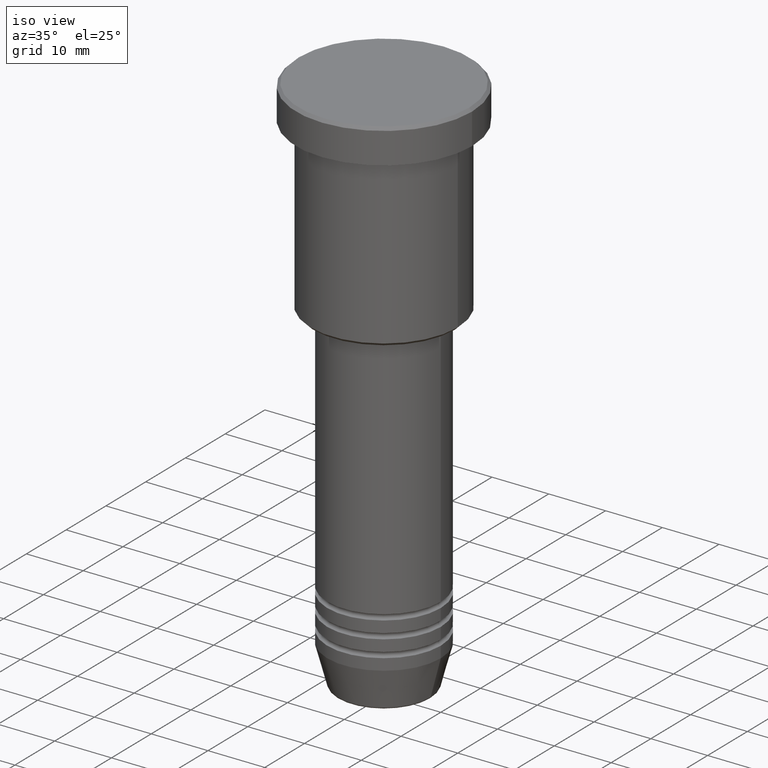
[diagram: clean part render]
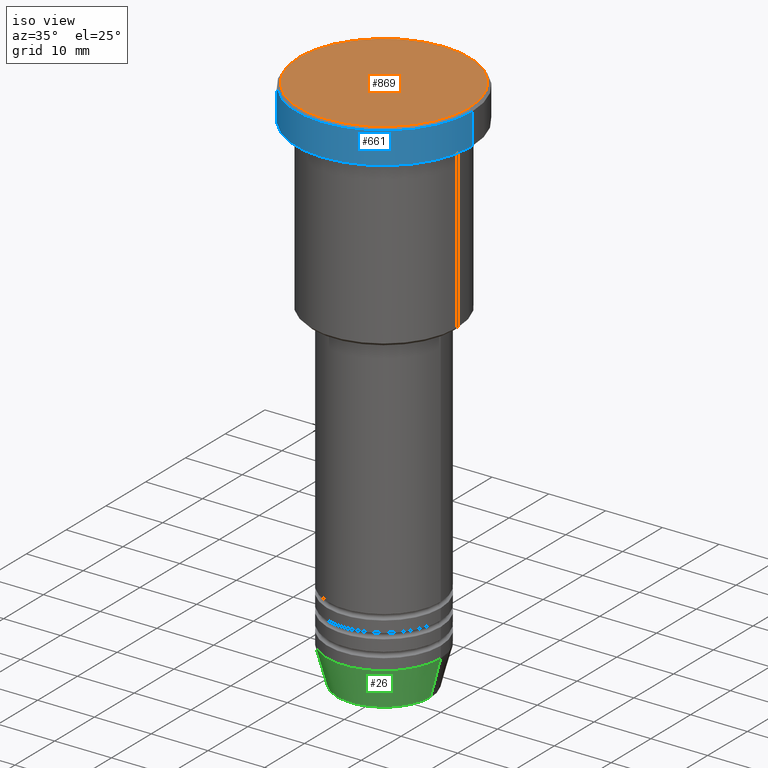
[diagram: same view with three faces highlighted in distinct colors, each labeled with its STEP entity id]
A machine part, iso view with three faces highlighted in distinct colors.
Their STEP definitions:

[orange] entity #869 — the highlighted planar face has unit normal (0, -0, 1).
#3 = DIRECTION ( 'NONE',  ( -0.000000000000000000, -0.000000000000000000, 1.000000000000000000 ) ) ;
#74 = CIRCLE ( 'NONE', #745, 15.00000000000001421 ) ;
#101 = CARTESIAN_POINT ( 'NONE',  ( 0.000000000000000000, 0.000000000000000000, 0.000000000000000000 ) ) ;
#191 = CARTESIAN_POINT ( 'NONE',  ( 15.00000000000001421, 1.867586368699714559E-15, 0.000000000000000000 ) ) ;
#236 = FACE_OUTER_BOUND ( 'NONE', #515, .T. ) ;
#238 = CARTESIAN_POINT ( 'NONE',  ( -15.00000000000001421, 0.000000000000000000, 0.000000000000000000 ) ) ;
#279 = CARTESIAN_POINT ( 'NONE',  ( 0.000000000000000000, 0.000000000000000000, 0.000000000000000000 ) ) ;
#308 = ORIENTED_EDGE ( 'NONE', *, *, #926, .T. ) ;
#410 = AXIS2_PLACEMENT_3D ( 'NONE', #965, #628, #514 ) ;
#514 = DIRECTION ( 'NONE',  ( 1.000000000000000000, 0.000000000000000000, 0.000000000000000000 ) ) ;
#515 = EDGE_LOOP ( 'NONE', ( #725, #308 ) ) ;
#529 = VERTEX_POINT ( 'NONE', #238 ) ;
#589 = AXIS2_PLACEMENT_3D ( 'NONE', #101, #3, #920 ) ;
#628 = DIRECTION ( 'NONE',  ( 0.000000000000000000, -0.000000000000000000, 1.000000000000000000 ) ) ;
#725 = ORIENTED_EDGE ( 'NONE', *, *, #913, .T. ) ;
#745 = AXIS2_PLACEMENT_3D ( 'NONE', #279, #811, #1177 ) ;
#811 = DIRECTION ( 'NONE',  ( -0.000000000000000000, -0.000000000000000000, 1.000000000000000000 ) ) ;
#869 = ADVANCED_FACE ( 'NONE', ( #236 ), #1056, .T. ) ;
#913 = EDGE_CURVE ( 'NONE', #529, #996, #946, .T. ) ;
#920 = DIRECTION ( 'NONE',  ( 1.000000000000000000, 0.000000000000000000, 0.000000000000000000 ) ) ;
#926 = EDGE_CURVE ( 'NONE', #996, #529, #74, .T. ) ;
#946 = CIRCLE ( 'NONE', #589, 15.00000000000001421 ) ;
#965 = CARTESIAN_POINT ( 'NONE',  ( 0.000000000000000000, 0.000000000000000000, 0.000000000000000000 ) ) ;
#996 = VERTEX_POINT ( 'NONE', #191 ) ;
#1056 = PLANE ( 'NONE',  #410 ) ;
#1177 = DIRECTION ( 'NONE',  ( 1.000000000000000000, 0.000000000000000000, 0.000000000000000000 ) ) ;

[blue] entity #661 — the highlighted cylindrical surface (partial cylindrical patch) has radius 15.5 mm, axis along (-0, -0, 1).
#31 = VERTEX_POINT ( 'NONE', #999 ) ;
#93 = AXIS2_PLACEMENT_3D ( 'NONE', #148, #165, #520 ) ;
#118 = DIRECTION ( 'NONE',  ( -0.000000000000000000, -0.000000000000000000, 1.000000000000000000 ) ) ;
#148 = CARTESIAN_POINT ( 'NONE',  ( 0.000000000000000000, 0.000000000000000000, -0.4999999999999987232 ) ) ;
#160 = CARTESIAN_POINT ( 'NONE',  ( -15.50000000000000000, 1.898202538678397557E-15, -0.4999999999999987232 ) ) ;
#165 = DIRECTION ( 'NONE',  ( 0.000000000000000000, 0.000000000000000000, -1.000000000000000000 ) ) ;
#245 = VECTOR ( 'NONE', #730, 1000.000000000000000 ) ;
#257 = VERTEX_POINT ( 'NONE', #874 ) ;
#258 = ORIENTED_EDGE ( 'NONE', *, *, #1034, .T. ) ;
#273 = CARTESIAN_POINT ( 'NONE',  ( -15.50000000000000000, 1.898202538678397557E-15, 0.000000000000000000 ) ) ;
#277 = EDGE_CURVE ( 'NONE', #31, #257, #627, .T. ) ;
#364 = VECTOR ( 'NONE', #887, 1000.000000000000000 ) ;
#403 = CARTESIAN_POINT ( 'NONE',  ( 0.000000000000000000, 0.000000000000000000, -5.999999999999995559 ) ) ;
#429 = CARTESIAN_POINT ( 'NONE',  ( -15.50000000000000000, 1.898202538678397557E-15, -5.999999999999995559 ) ) ;
#434 = ORIENTED_EDGE ( 'NONE', *, *, #277, .T. ) ;
#468 = VERTEX_POINT ( 'NONE', #160 ) ;
#477 = DIRECTION ( 'NONE',  ( 1.000000000000000000, 0.000000000000000000, 0.000000000000000000 ) ) ;
#520 = DIRECTION ( 'NONE',  ( 1.000000000000000000, 0.000000000000000000, 0.000000000000000000 ) ) ;
#627 = LINE ( 'NONE', #977, #364 ) ;
#661 = ADVANCED_FACE ( 'NONE', ( #1039 ), #1114, .T. ) ;
#667 = ORIENTED_EDGE ( 'NONE', *, *, #895, .F. ) ;
#671 = DIRECTION ( 'NONE',  ( -0.000000000000000000, -0.000000000000000000, 1.000000000000000000 ) ) ;
#730 = DIRECTION ( 'NONE',  ( -0.000000000000000000, -0.000000000000000000, 1.000000000000000000 ) ) ;
#801 = CIRCLE ( 'NONE', #93, 15.50000000000000000 ) ;
#829 = ORIENTED_EDGE ( 'NONE', *, *, #863, .T. ) ;
#841 = VERTEX_POINT ( 'NONE', #429 ) ;
#851 = DIRECTION ( 'NONE',  ( 1.000000000000000000, 0.000000000000000000, 0.000000000000000000 ) ) ;
#863 = EDGE_CURVE ( 'NONE', #257, #468, #801, .T. ) ;
#874 = CARTESIAN_POINT ( 'NONE',  ( 15.50000000000000000, 0.000000000000000000, -0.4999999999999987232 ) ) ;
#887 = DIRECTION ( 'NONE',  ( -0.000000000000000000, -0.000000000000000000, 1.000000000000000000 ) ) ;
#893 = LINE ( 'NONE', #273, #245 ) ;
#895 = EDGE_CURVE ( 'NONE', #841, #468, #893, .T. ) ;
#977 = CARTESIAN_POINT ( 'NONE',  ( 15.50000000000000000, 0.000000000000000000, 0.000000000000000000 ) ) ;
#990 = EDGE_LOOP ( 'NONE', ( #667, #258, #434, #829 ) ) ;
#999 = CARTESIAN_POINT ( 'NONE',  ( 15.50000000000000000, 0.000000000000000000, -5.999999999999995559 ) ) ;
#1025 = CARTESIAN_POINT ( 'NONE',  ( 0.000000000000000000, 0.000000000000000000, 0.000000000000000000 ) ) ;
#1034 = EDGE_CURVE ( 'NONE', #841, #31, #1042, .T. ) ;
#1039 = FACE_OUTER_BOUND ( 'NONE', #990, .T. ) ;
#1042 = CIRCLE ( 'NONE', #1155, 15.50000000000000000 ) ;
#1114 = CYLINDRICAL_SURFACE ( 'NONE', #1135, 15.50000000000000000 ) ;
#1135 = AXIS2_PLACEMENT_3D ( 'NONE', #1025, #671, #851 ) ;
#1155 = AXIS2_PLACEMENT_3D ( 'NONE', #403, #118, #477 ) ;

[green] entity #26 — the highlighted conical surface has half-angle 15 deg.
#11 = CARTESIAN_POINT ( 'NONE',  ( 0.000000000000000000, 0.000000000000000000, -89.00000000000000000 ) ) ;
#18 = VECTOR ( 'NONE', #810, 1000.000000000000000 ) ;
#26 = ADVANCED_FACE ( 'NONE', ( #269 ), #993, .T. ) ;
#45 = EDGE_CURVE ( 'NONE', #270, #1082, #1049, .T. ) ;
#63 = AXIS2_PLACEMENT_3D ( 'NONE', #448, #825, #1182 ) ;
#69 = EDGE_CURVE ( 'NONE', #986, #1178, #916, .T. ) ;
#87 = ORIENTED_EDGE ( 'NONE', *, *, #411, .F. ) ;
#96 = DIRECTION ( 'NONE',  ( -0.000000000000000000, -0.000000000000000000, 1.000000000000000000 ) ) ;
#100 = EDGE_CURVE ( 'NONE', #1082, #1178, #592, .T. ) ;
#137 = DIRECTION ( 'NONE',  ( 0.2588190451025213501, 0.000000000000000000, 0.9659258262890680902 ) ) ;
#162 = VECTOR ( 'NONE', #137, 1000.000000000000000 ) ;
#269 = FACE_OUTER_BOUND ( 'NONE', #1148, .T. ) ;
#270 = VERTEX_POINT ( 'NONE', #632 ) ;
#293 = CARTESIAN_POINT ( 'NONE',  ( 8.223655072137187716, 0.000000000000000000, -95.62940952255127058 ) ) ;
#387 = ORIENTED_EDGE ( 'NONE', *, *, #45, .T. ) ;
#411 = EDGE_CURVE ( 'NONE', #270, #986, #1079, .T. ) ;
#448 = CARTESIAN_POINT ( 'NONE',  ( 0.000000000000000000, 0.000000000000000000, -95.62940952255127058 ) ) ;
#532 = CARTESIAN_POINT ( 'NONE',  ( -10.00000000000000000, 1.224646799147353256E-15, -89.00000000000000000 ) ) ;
#538 = AXIS2_PLACEMENT_3D ( 'NONE', #11, #96, #650 ) ;
#592 = LINE ( 'NONE', #942, #162 ) ;
#632 = CARTESIAN_POINT ( 'NONE',  ( -8.223655072137187716, 1.115877042642911856E-15, -95.62940952255127058 ) ) ;
#650 = DIRECTION ( 'NONE',  ( 1.000000000000000000, 0.000000000000000000, 0.000000000000000000 ) ) ;
#686 = DIRECTION ( 'NONE',  ( -0.000000000000000000, -0.000000000000000000, 1.000000000000000000 ) ) ;
#810 = DIRECTION ( 'NONE',  ( -0.2588190451025213501, 3.169619151431772337E-17, 0.9659258262890680902 ) ) ;
#825 = DIRECTION ( 'NONE',  ( -0.000000000000000000, -0.000000000000000000, 1.000000000000000000 ) ) ;
#848 = CARTESIAN_POINT ( 'NONE',  ( 10.00000000000000000, 0.000000000000000000, -89.00000000000000000 ) ) ;
#850 = ORIENTED_EDGE ( 'NONE', *, *, #69, .F. ) ;
#916 = CIRCLE ( 'NONE', #1144, 10.00000000000000000 ) ;
#931 = CARTESIAN_POINT ( 'NONE',  ( 0.000000000000000000, 0.000000000000000000, -89.00000000000000000 ) ) ;
#942 = CARTESIAN_POINT ( 'NONE',  ( 10.00000000000000000, 0.000000000000000000, -89.00000000000000000 ) ) ;
#986 = VERTEX_POINT ( 'NONE', #1003 ) ;
#993 = CONICAL_SURFACE ( 'NONE', #538, 10.00000000000000000, 0.2617993877991500740 ) ;
#1003 = CARTESIAN_POINT ( 'NONE',  ( -10.00000000000000000, 1.224646799147353256E-15, -89.00000000000000000 ) ) ;
#1044 = DIRECTION ( 'NONE',  ( 1.000000000000000000, 0.000000000000000000, 0.000000000000000000 ) ) ;
#1049 = CIRCLE ( 'NONE', #63, 8.223655072137187716 ) ;
#1079 = LINE ( 'NONE', #532, #18 ) ;
#1082 = VERTEX_POINT ( 'NONE', #293 ) ;
#1144 = AXIS2_PLACEMENT_3D ( 'NONE', #931, #686, #1044 ) ;
#1148 = EDGE_LOOP ( 'NONE', ( #87, #387, #1170, #850 ) ) ;
#1170 = ORIENTED_EDGE ( 'NONE', *, *, #100, .T. ) ;
#1178 = VERTEX_POINT ( 'NONE', #848 ) ;
#1182 = DIRECTION ( 'NONE',  ( 1.000000000000000000, 0.000000000000000000, 0.000000000000000000 ) ) ;